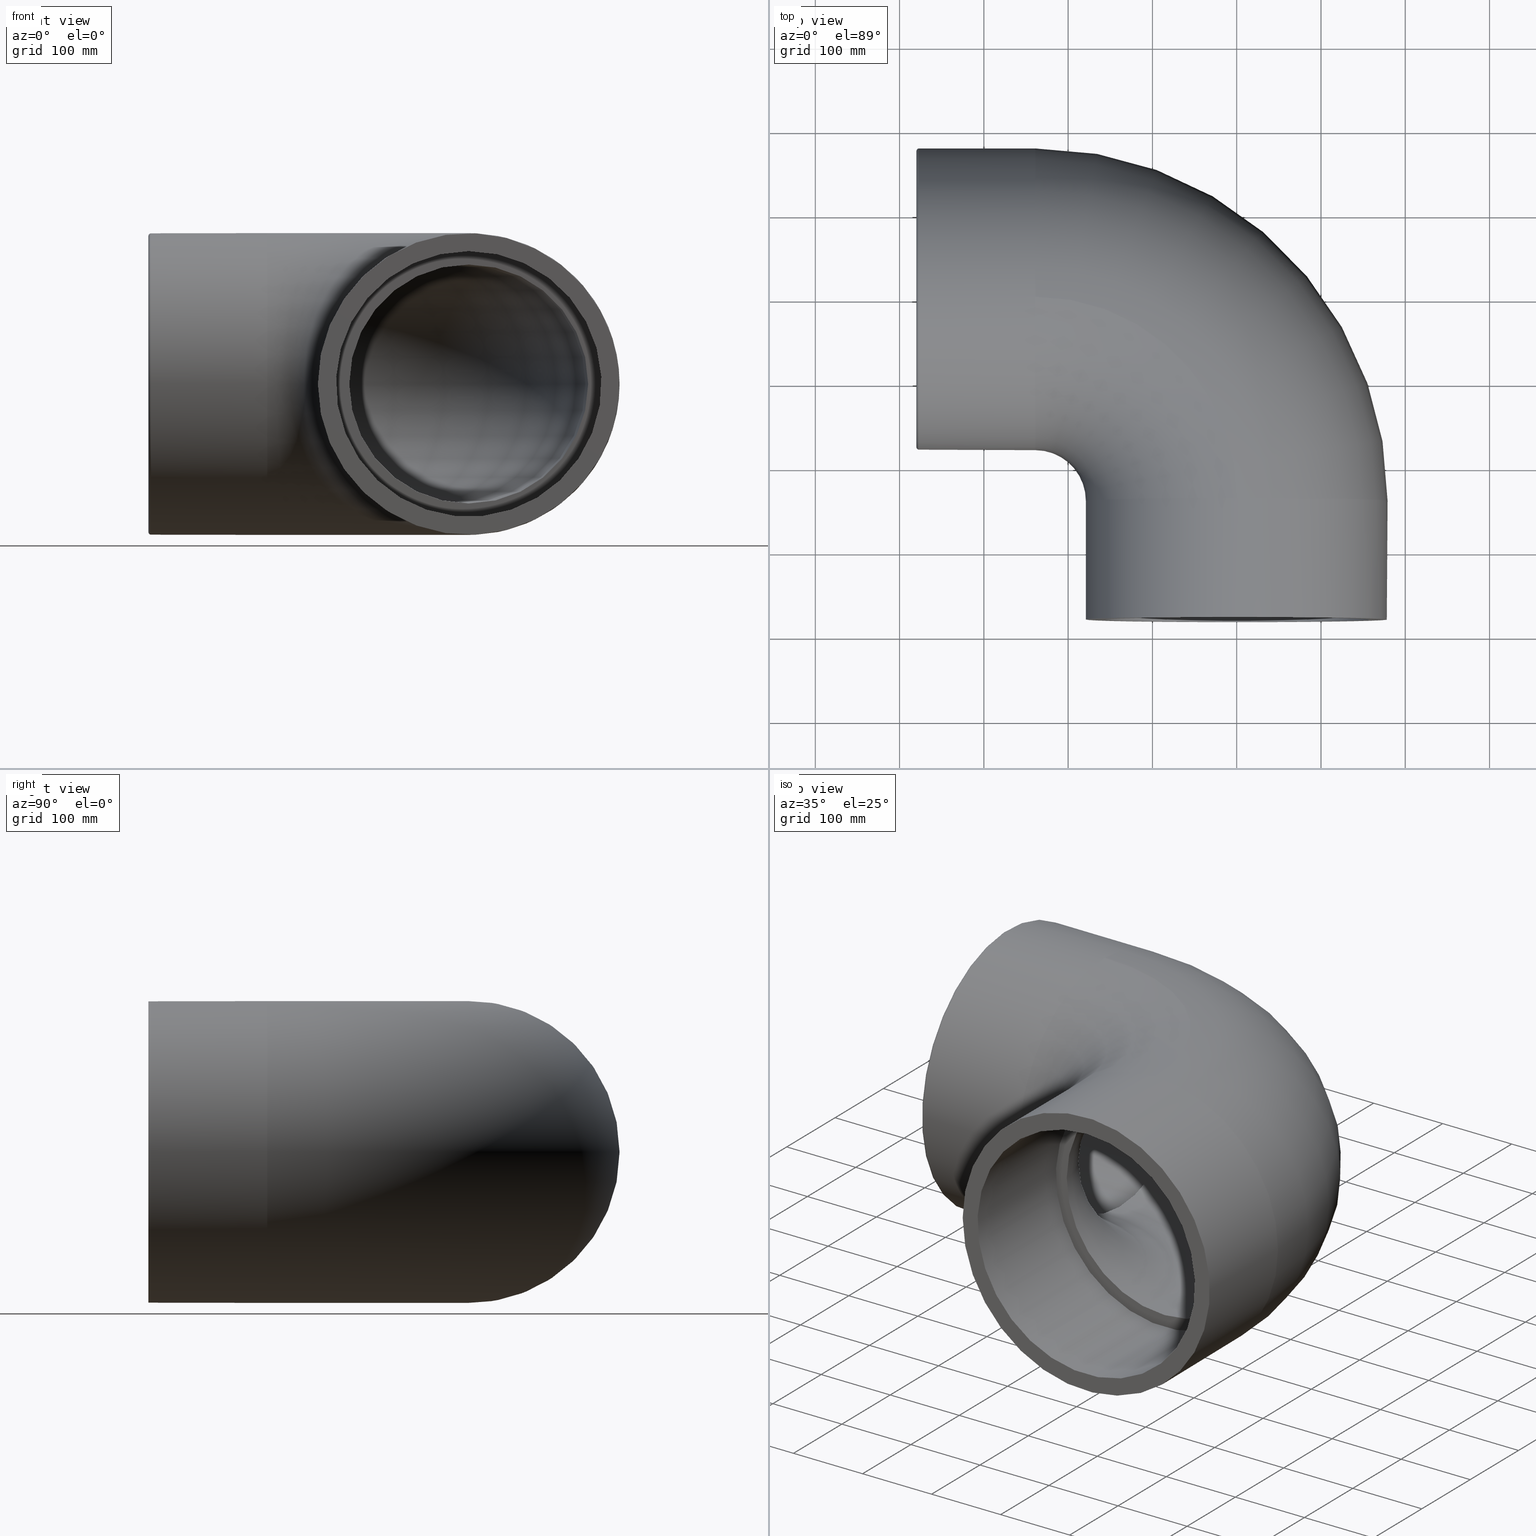
[diagram: canonical four-view strip — front | top / right | iso, engineering-drawing reading convention]
A machine part, canonical four-view strip (front | top / right | iso — engineering-drawing reading convention). The complete STEP part file that produces these views, byte-faithful:
ISO-10303-21;
HEADER;
/* Generated by software containing ST-Developer
 * from STEP Tools, Inc. (www.steptools.com) 
 */

FILE_DESCRIPTION(
/* description */ ('PLASSON 90\X\B0 ELBOW-CEMENT PVC 315'),
/* implementation_level */ '2;1');

FILE_NAME(
/* name */ 
'C:\\Dropbox\\KIMPROJECTS-Inventor\\99-16-3568-Processing\\PVC Catalog
 2017\\050500\\(_AS)050500315.ipt.stp',
/* time_stamp */ '2017-12-07T15:55:32+02:00',
/* author */ ('KIM'),
/* organization */ (''),
/* preprocessor_version */ 'ST-DEVELOPER v15.6',
/* originating_system */ 'Autodesk Inventor 2015',
/* authorisation */ '');

FILE_SCHEMA (('AUTOMOTIVE_DESIGN { 1 0 10303 214 3 1 1 }'));
ENDSEC;

DATA;
#10=MECHANICAL_DESIGN_GEOMETRIC_PRESENTATION_REPRESENTATION('',(#13),#243);
#11=SHAPE_REPRESENTATION_RELATIONSHIP('SRR','None',#252,#12);
#12=ADVANCED_BREP_SHAPE_REPRESENTATION($,(#14),#242);
#13=STYLED_ITEM('',(#261),#14);
#14=MANIFOLD_SOLID_BREP('Solid1',#136);
#15=PLANE('',#144);
#16=PLANE('',#148);
#17=PLANE('',#152);
#18=PLANE('',#158);
#19=CYLINDRICAL_SURFACE('',#141,157.5);
#20=CYLINDRICAL_SURFACE('',#145,157.5);
#21=CYLINDRICAL_SURFACE('',#154,179.);
#22=CYLINDRICAL_SURFACE('',#159,179.);
#23=FACE_BOUND('',#46,.T.);
#24=FACE_BOUND('',#48,.T.);
#25=FACE_BOUND('',#50,.T.);
#26=FACE_BOUND('',#52,.T.);
#27=FACE_BOUND('',#54,.T.);
#28=FACE_BOUND('',#56,.T.);
#29=FACE_BOUND('',#58,.T.);
#30=FACE_BOUND('',#60,.T.);
#31=FACE_BOUND('',#62,.T.);
#32=FACE_BOUND('',#64,.T.);
#33=FACE_BOUND('',#66,.T.);
#34=FACE_OUTER_BOUND('',#45,.T.);
#35=FACE_OUTER_BOUND('',#47,.T.);
#36=FACE_OUTER_BOUND('',#49,.T.);
#37=FACE_OUTER_BOUND('',#51,.T.);
#38=FACE_OUTER_BOUND('',#53,.T.);
#39=FACE_OUTER_BOUND('',#55,.T.);
#40=FACE_OUTER_BOUND('',#57,.T.);
#41=FACE_OUTER_BOUND('',#59,.T.);
#42=FACE_OUTER_BOUND('',#61,.T.);
#43=FACE_OUTER_BOUND('',#63,.T.);
#44=FACE_OUTER_BOUND('',#65,.T.);
#45=EDGE_LOOP('',(#100));
#46=EDGE_LOOP('',(#101));
#47=EDGE_LOOP('',(#102));
#48=EDGE_LOOP('',(#103));
#49=EDGE_LOOP('',(#104));
#50=EDGE_LOOP('',(#105));
#51=EDGE_LOOP('',(#106));
#52=EDGE_LOOP('',(#107));
#53=EDGE_LOOP('',(#108));
#54=EDGE_LOOP('',(#109));
#55=EDGE_LOOP('',(#110));
#56=EDGE_LOOP('',(#111));
#57=EDGE_LOOP('',(#112));
#58=EDGE_LOOP('',(#113));
#59=EDGE_LOOP('',(#114));
#60=EDGE_LOOP('',(#115));
#61=EDGE_LOOP('',(#116));
#62=EDGE_LOOP('',(#117));
#63=EDGE_LOOP('',(#118));
#64=EDGE_LOOP('',(#119));
#65=EDGE_LOOP('',(#120));
#66=EDGE_LOOP('',(#121));
#67=CIRCLE('',#139,141.75);
#68=CIRCLE('',#140,141.75);
#69=CIRCLE('',#142,157.5);
#70=CIRCLE('',#143,157.5);
#71=CIRCLE('',#146,157.5);
#72=CIRCLE('',#147,157.5);
#73=CIRCLE('',#150,179.);
#74=CIRCLE('',#151,179.);
#75=CIRCLE('',#153,179.);
#76=CIRCLE('',#156,175.85);
#77=CIRCLE('',#157,179.);
#78=VERTEX_POINT('',#208);
#79=VERTEX_POINT('',#210);
#80=VERTEX_POINT('',#213);
#81=VERTEX_POINT('',#215);
#82=VERTEX_POINT('',#219);
#83=VERTEX_POINT('',#221);
#84=VERTEX_POINT('',#225);
#85=VERTEX_POINT('',#227);
#86=VERTEX_POINT('',#230);
#87=VERTEX_POINT('',#234);
#88=VERTEX_POINT('',#236);
#89=EDGE_CURVE('',#78,#78,#67,.T.);
#90=EDGE_CURVE('',#79,#79,#68,.T.);
#91=EDGE_CURVE('',#80,#80,#69,.T.);
#92=EDGE_CURVE('',#81,#81,#70,.T.);
#93=EDGE_CURVE('',#82,#82,#71,.T.);
#94=EDGE_CURVE('',#83,#83,#72,.T.);
#95=EDGE_CURVE('',#84,#84,#73,.T.);
#96=EDGE_CURVE('',#85,#85,#74,.T.);
#97=EDGE_CURVE('',#86,#86,#75,.T.);
#98=EDGE_CURVE('',#87,#87,#76,.T.);
#99=EDGE_CURVE('',#88,#88,#77,.T.);
#100=ORIENTED_EDGE('',*,*,#89,.F.);
#101=ORIENTED_EDGE('',*,*,#90,.F.);
#102=ORIENTED_EDGE('',*,*,#91,.T.);
#103=ORIENTED_EDGE('',*,*,#92,.F.);
#104=ORIENTED_EDGE('',*,*,#91,.F.);
#105=ORIENTED_EDGE('',*,*,#89,.T.);
#106=ORIENTED_EDGE('',*,*,#93,.T.);
#107=ORIENTED_EDGE('',*,*,#94,.F.);
#108=ORIENTED_EDGE('',*,*,#93,.F.);
#109=ORIENTED_EDGE('',*,*,#90,.T.);
#110=ORIENTED_EDGE('',*,*,#95,.T.);
#111=ORIENTED_EDGE('',*,*,#96,.T.);
#112=ORIENTED_EDGE('',*,*,#97,.F.);
#113=ORIENTED_EDGE('',*,*,#92,.T.);
#114=ORIENTED_EDGE('',*,*,#97,.T.);
#115=ORIENTED_EDGE('',*,*,#95,.F.);
#116=ORIENTED_EDGE('',*,*,#98,.T.);
#117=ORIENTED_EDGE('',*,*,#99,.T.);
#118=ORIENTED_EDGE('',*,*,#98,.F.);
#119=ORIENTED_EDGE('',*,*,#94,.T.);
#120=ORIENTED_EDGE('',*,*,#96,.F.);
#121=ORIENTED_EDGE('',*,*,#99,.F.);
#122=TOROIDAL_SURFACE('',#138,218.,141.75);
#123=TOROIDAL_SURFACE('',#149,239.,179.);
#124=TOROIDAL_SURFACE('',#155,175.85,3.15);
#125=ADVANCED_FACE('',(#34,#23),#122,.F.);
#126=ADVANCED_FACE('',(#35,#24),#19,.F.);
#127=ADVANCED_FACE('',(#36,#25),#15,.F.);
#128=ADVANCED_FACE('',(#37,#26),#20,.F.);
#129=ADVANCED_FACE('',(#38,#27),#16,.F.);
#130=ADVANCED_FACE('',(#39,#28),#123,.T.);
#131=ADVANCED_FACE('',(#40,#29),#17,.T.);
#132=ADVANCED_FACE('',(#41,#30),#21,.T.);
#133=ADVANCED_FACE('',(#42,#31),#124,.T.);
#134=ADVANCED_FACE('',(#43,#32),#18,.T.);
#135=ADVANCED_FACE('',(#44,#33),#22,.T.);
#136=CLOSED_SHELL('',(#125,#126,#127,#128,#129,#130,#131,#132,#133,#134,
#135));
#137=AXIS2_PLACEMENT_3D('placement',#206,#160,#161);
#138=AXIS2_PLACEMENT_3D('',#207,#162,#163);
#139=AXIS2_PLACEMENT_3D('',#209,#164,#165);
#140=AXIS2_PLACEMENT_3D('',#211,#166,#167);
#141=AXIS2_PLACEMENT_3D('',#212,#168,#169);
#142=AXIS2_PLACEMENT_3D('',#214,#170,#171);
#143=AXIS2_PLACEMENT_3D('',#216,#172,#173);
#144=AXIS2_PLACEMENT_3D('',#217,#174,#175);
#145=AXIS2_PLACEMENT_3D('',#218,#176,#177);
#146=AXIS2_PLACEMENT_3D('',#220,#178,#179);
#147=AXIS2_PLACEMENT_3D('',#222,#180,#181);
#148=AXIS2_PLACEMENT_3D('',#223,#182,#183);
#149=AXIS2_PLACEMENT_3D('',#224,#184,#185);
#150=AXIS2_PLACEMENT_3D('',#226,#186,#187);
#151=AXIS2_PLACEMENT_3D('',#228,#188,#189);
#152=AXIS2_PLACEMENT_3D('',#229,#190,#191);
#153=AXIS2_PLACEMENT_3D('',#231,#192,#193);
#154=AXIS2_PLACEMENT_3D('',#232,#194,#195);
#155=AXIS2_PLACEMENT_3D('',#233,#196,#197);
#156=AXIS2_PLACEMENT_3D('',#235,#198,#199);
#157=AXIS2_PLACEMENT_3D('',#237,#200,#201);
#158=AXIS2_PLACEMENT_3D('',#238,#202,#203);
#159=AXIS2_PLACEMENT_3D('',#239,#204,#205);
#160=DIRECTION('axis',(0.,0.,1.));
#161=DIRECTION('refdir',(1.,0.,0.));
#162=DIRECTION('center_axis',(0.,0.,-1.));
#163=DIRECTION('ref_axis',(-1.,0.,0.));
#164=DIRECTION('center_axis',(6.12323399573677E-17,1.,0.));
#165=DIRECTION('ref_axis',(1.,-6.12323399573677E-17,0.));
#166=DIRECTION('center_axis',(1.,0.,0.));
#167=DIRECTION('ref_axis',(0.,1.,0.));
#168=DIRECTION('center_axis',(6.12323399573677E-17,1.,0.));
#169=DIRECTION('ref_axis',(0.,0.,-1.));
#170=DIRECTION('center_axis',(6.12323399573677E-17,1.,0.));
#171=DIRECTION('ref_axis',(0.,0.,-1.));
#172=DIRECTION('center_axis',(6.12323399573677E-17,1.,0.));
#173=DIRECTION('ref_axis',(0.,0.,-1.));
#174=DIRECTION('center_axis',(6.12323399573677E-17,1.,0.));
#175=DIRECTION('ref_axis',(0.,0.,-1.));
#176=DIRECTION('center_axis',(1.,0.,0.));
#177=DIRECTION('ref_axis',(0.,0.,-1.));
#178=DIRECTION('center_axis',(1.,0.,0.));
#179=DIRECTION('ref_axis',(0.,0.,-1.));
#180=DIRECTION('center_axis',(1.,0.,0.));
#181=DIRECTION('ref_axis',(0.,0.,-1.));
#182=DIRECTION('center_axis',(1.,0.,0.));
#183=DIRECTION('ref_axis',(0.,0.,-1.));
#184=DIRECTION('center_axis',(0.,0.,-1.));
#185=DIRECTION('ref_axis',(-1.,0.,0.));
#186=DIRECTION('center_axis',(6.12323399573677E-17,1.,0.));
#187=DIRECTION('ref_axis',(0.,0.,-1.));
#188=DIRECTION('center_axis',(1.,0.,0.));
#189=DIRECTION('ref_axis',(0.,0.,-1.));
#190=DIRECTION('center_axis',(-6.12323399573677E-17,-1.,0.));
#191=DIRECTION('ref_axis',(0.,0.,1.));
#192=DIRECTION('center_axis',(6.12323399573677E-17,1.,0.));
#193=DIRECTION('ref_axis',(0.,0.,-1.));
#194=DIRECTION('center_axis',(6.12323399573677E-17,1.,0.));
#195=DIRECTION('ref_axis',(-1.,6.12323399573676E-17,0.));
#196=DIRECTION('center_axis',(1.,0.,0.));
#197=DIRECTION('ref_axis',(0.,0.,-1.));
#198=DIRECTION('center_axis',(1.,0.,0.));
#199=DIRECTION('ref_axis',(0.,-1.,1.83697019872103E-16));
#200=DIRECTION('center_axis',(-1.,0.,0.));
#201=DIRECTION('ref_axis',(0.,-1.,1.83697019872103E-16));
#202=DIRECTION('center_axis',(-1.,0.,0.));
#203=DIRECTION('ref_axis',(0.,0.,1.));
#204=DIRECTION('center_axis',(1.,0.,0.));
#205=DIRECTION('ref_axis',(0.,1.,0.));
#206=CARTESIAN_POINT('',(0.,0.,0.));
#207=CARTESIAN_POINT('Origin',(-218.,-218.,0.));
#208=CARTESIAN_POINT('',(1.77635683940025E-14,-218.,141.75));
#209=CARTESIAN_POINT('Origin',(0.,-218.,0.));
#210=CARTESIAN_POINT('',(-218.,1.73593683779137E-14,141.75));
#211=CARTESIAN_POINT('Origin',(-218.,0.,0.));
#212=CARTESIAN_POINT('Origin',(-2.32682891837997E-14,-380.,0.));
#213=CARTESIAN_POINT('',(-3.2636837197277E-14,-218.,157.5));
#214=CARTESIAN_POINT('Origin',(-1.33486501107062E-14,-218.,0.));
#215=CARTESIAN_POINT('',(-4.25564762703705E-14,-380.,157.5));
#216=CARTESIAN_POINT('Origin',(-2.32682891837997E-14,-380.,0.));
#217=CARTESIAN_POINT('Origin',(-1.63562384102198E-14,-218.,-7.6225255229082E-15));
#218=CARTESIAN_POINT('Origin',(-380.,0.,0.));
#219=CARTESIAN_POINT('',(-218.,1.92881870865708E-14,157.5));
#220=CARTESIAN_POINT('Origin',(-218.,0.,0.));
#221=CARTESIAN_POINT('',(-380.,1.92881870865708E-14,157.5));
#222=CARTESIAN_POINT('Origin',(-380.,0.,0.));
#223=CARTESIAN_POINT('Origin',(-218.,3.00758829951365E-15,-7.6225255229082E-15));
#224=CARTESIAN_POINT('Origin',(-239.,-239.,0.));
#225=CARTESIAN_POINT('',(-1.77635683940025E-14,-239.,179.));
#226=CARTESIAN_POINT('Origin',(-1.46345292498109E-14,-239.,0.));
#227=CARTESIAN_POINT('',(-239.,-4.38423554094752E-14,-179.));
#228=CARTESIAN_POINT('Origin',(-239.,0.,0.));
#229=CARTESIAN_POINT('Origin',(-179.,-380.,0.));
#230=CARTESIAN_POINT('',(-179.,-380.,0.));
#231=CARTESIAN_POINT('Origin',(-2.32682891837997E-14,-380.,0.));
#232=CARTESIAN_POINT('Origin',(-1.89514092168053E-14,-309.5,0.));
#233=CARTESIAN_POINT('Origin',(-376.85,0.,0.));
#234=CARTESIAN_POINT('',(-380.,175.85,-1.07677069815031E-14));
#235=CARTESIAN_POINT('Origin',(-380.,0.,0.));
#236=CARTESIAN_POINT('',(-376.85,179.,-5.48029442618441E-14));
#237=CARTESIAN_POINT('Origin',(-376.85,0.,0.));
#238=CARTESIAN_POINT('Origin',(-380.,179.,0.));
#239=CARTESIAN_POINT('Origin',(-309.5,0.,0.));
#240=UNCERTAINTY_MEASURE_WITH_UNIT(LENGTH_MEASURE(0.01),#244,
'DISTANCE_ACCURACY_VALUE',
'Maximum model space distance between geometric entities at asserted c
onnectivities');
#241=UNCERTAINTY_MEASURE_WITH_UNIT(LENGTH_MEASURE(1.E-6),#244,
'DISTANCE_ACCURACY_VALUE',
'Maximum model space distance between geometric entities at asserted c
onnectivities');
#242=(
GEOMETRIC_REPRESENTATION_CONTEXT(3)
GLOBAL_UNCERTAINTY_ASSIGNED_CONTEXT((#240))
GLOBAL_UNIT_ASSIGNED_CONTEXT((#244,#247,#245))
REPRESENTATION_CONTEXT('','3D')
);
#243=(
GEOMETRIC_REPRESENTATION_CONTEXT(3)
GLOBAL_UNCERTAINTY_ASSIGNED_CONTEXT((#241))
GLOBAL_UNIT_ASSIGNED_CONTEXT((#244,#247,#245))
REPRESENTATION_CONTEXT('','3D')
);
#244=(
LENGTH_UNIT()
NAMED_UNIT(*)
SI_UNIT(.MILLI.,.METRE.)
);
#245=(
NAMED_UNIT(*)
SI_UNIT($,.STERADIAN.)
SOLID_ANGLE_UNIT()
);
#246=DIMENSIONAL_EXPONENTS(0.,0.,0.,0.,0.,0.,0.);
#247=(
CONVERSION_BASED_UNIT('degree',#249)
NAMED_UNIT(#246)
PLANE_ANGLE_UNIT()
);
#248=(
NAMED_UNIT(*)
PLANE_ANGLE_UNIT()
SI_UNIT($,.RADIAN.)
);
#249=PLANE_ANGLE_MEASURE_WITH_UNIT(PLANE_ANGLE_MEASURE(0.01745329252),#248);
#250=SHAPE_DEFINITION_REPRESENTATION(#251,#252);
#251=PRODUCT_DEFINITION_SHAPE('',$,#254);
#252=SHAPE_REPRESENTATION('',(#137),#242);
#253=PRODUCT_DEFINITION_CONTEXT('part definition',#258,'design');
#254=PRODUCT_DEFINITION('(_AS)050500315','(_AS)050500315',#255,#253);
#255=PRODUCT_DEFINITION_FORMATION('',$,#260);
#256=PRODUCT_RELATED_PRODUCT_CATEGORY('(_AS)050500315','(_AS)050500315',
(#260));
#257=APPLICATION_PROTOCOL_DEFINITION('international standard',
'automotive_design',2009,#258);
#258=APPLICATION_CONTEXT(
'Core Data for Automotive Mechanical Design Process');
#259=PRODUCT_CONTEXT('part definition',#258,'mechanical');
#260=PRODUCT('(_AS)050500315','(_AS)050500315',$,(#259));
#261=PRESENTATION_STYLE_ASSIGNMENT((#262));
#262=SURFACE_STYLE_USAGE(.BOTH.,#263);
#263=SURFACE_SIDE_STYLE($,(#264));
#264=SURFACE_STYLE_FILL_AREA(#265);
#265=FILL_AREA_STYLE($,(#266));
#266=FILL_AREA_STYLE_COLOUR($,#267);
#267=COLOUR_RGB('',0.749019607843137,0.749019607843137,0.749019607843137);
ENDSEC;
END-ISO-10303-21;
